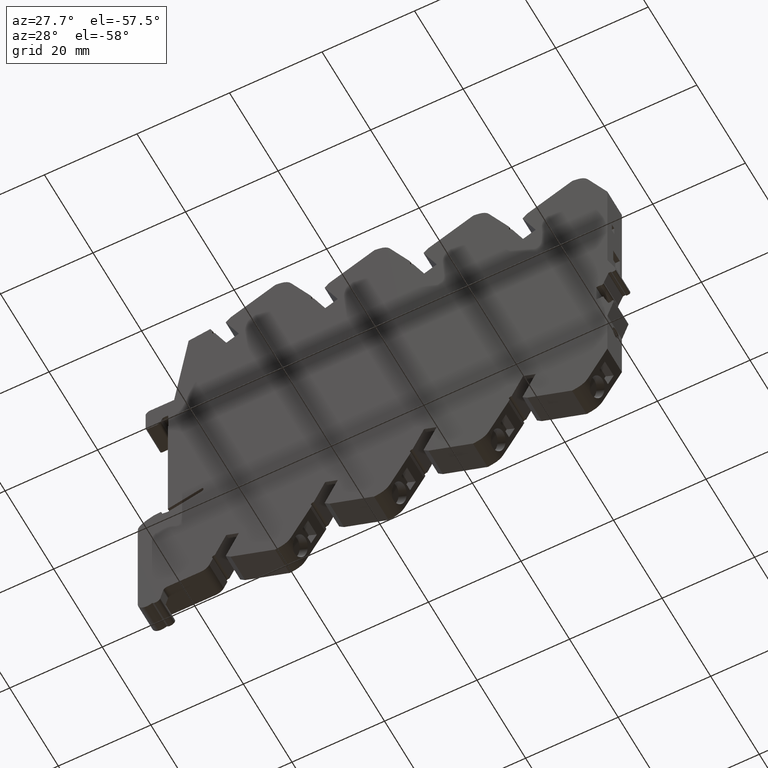
[diagram: clean part render]
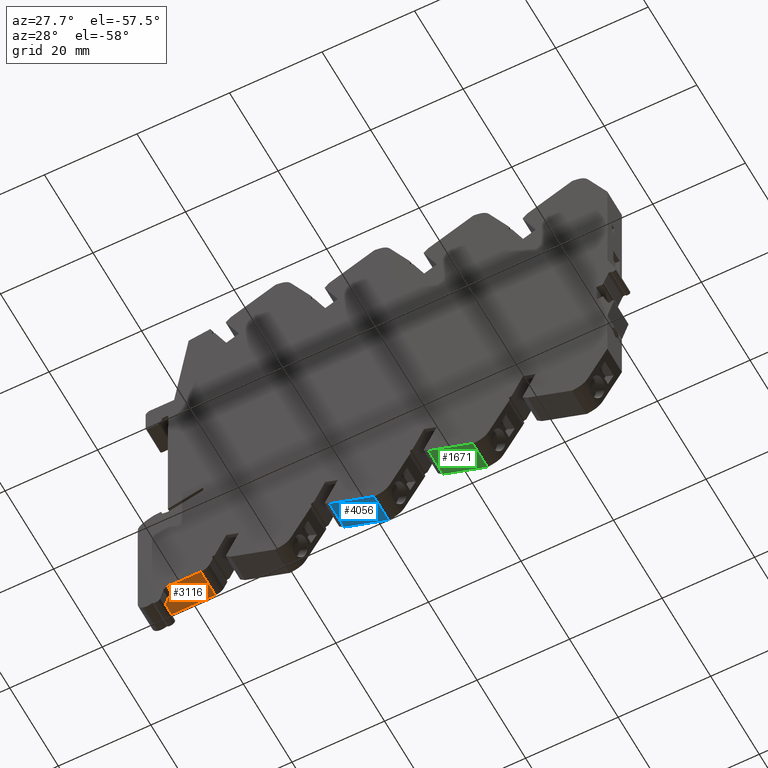
[diagram: same view with three faces highlighted in distinct colors, each labeled with its STEP entity id]
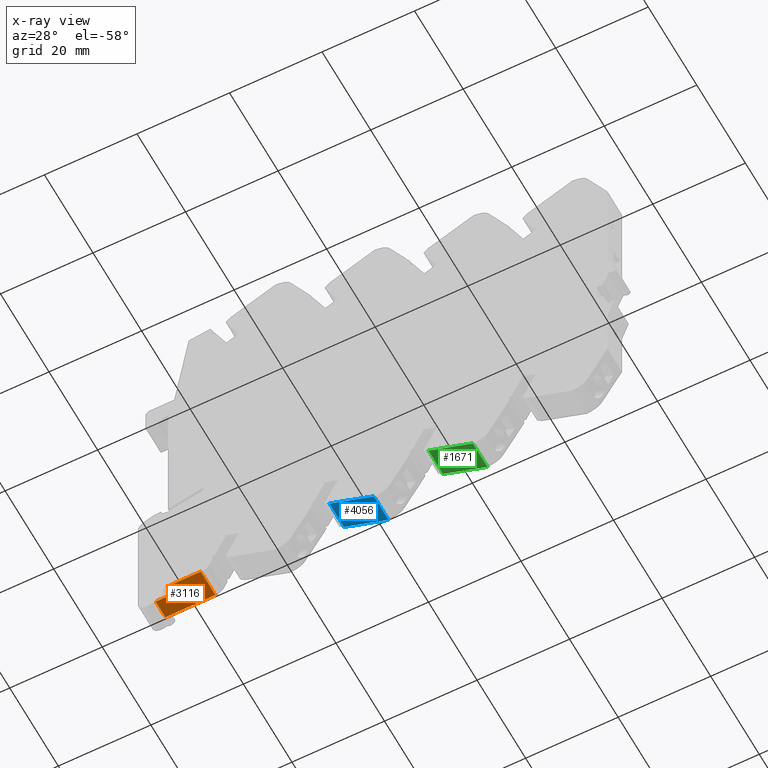
[diagram: x-ray of the same camera — body ghosted, the three highlighted faces saturated]
A machine part, auxiliary view with three faces highlighted in distinct colors.
The next image is the same camera in x-ray (body ghosted, the three faces saturated) — at least one of them is partly hidden behind the body in this view.
Their STEP definitions:

[orange] entity #3116 — the highlighted planar face has unit normal (0, 0, 1).
#158 = ORIENTED_EDGE ( 'NONE', *, *, #1839, .T. ) ;
#214 = CARTESIAN_POINT ( 'NONE',  ( -1.000000000000000000, -42.32500000000000284, -47.94222499999999343 ) ) ;
#322 = ORIENTED_EDGE ( 'NONE', *, *, #4272, .F. ) ;
#336 = CARTESIAN_POINT ( 'NONE',  ( -1.000000000000000000, -42.32500000000000284, -47.94222499999999343 ) ) ;
#961 = VERTEX_POINT ( 'NONE', #7839 ) ;
#1116 = LINE ( 'NONE', #336, #8563 ) ;
#1256 = LINE ( 'NONE', #4644, #8470 ) ;
#1398 = DIRECTION ( 'NONE',  ( 0.000000000000000000, 0.000000000000000000, -1.000000000000000000 ) ) ;
#1571 = FACE_OUTER_BOUND ( 'NONE', #3781, .T. ) ;
#1590 = EDGE_CURVE ( 'NONE', #7468, #2349, #8648, .T. ) ;
#1645 = VECTOR ( 'NONE', #5424, 1000.000000000000000 ) ;
#1839 = EDGE_CURVE ( 'NONE', #8621, #2349, #1256, .T. ) ;
#1868 = VECTOR ( 'NONE', #1398, 1000.000000000000000 ) ;
#2232 = DIRECTION ( 'NONE',  ( 0.000000000000000000, 0.000000000000000000, 1.000000000000000000 ) ) ;
#2349 = VERTEX_POINT ( 'NONE', #4158 ) ;
#2640 = CARTESIAN_POINT ( 'NONE',  ( 3.000000000000000000, -42.32500000000000284, -44.29713899999999427 ) ) ;
#2749 = ORIENTED_EDGE ( 'NONE', *, *, #6349, .F. ) ;
#2808 = CARTESIAN_POINT ( 'NONE',  ( 3.000000000000000000, -42.32500000000000284, -37.11722699999998554 ) ) ;
#2911 = VECTOR ( 'NONE', #6940, 1000.000000000000000 ) ;
#2977 = CARTESIAN_POINT ( 'NONE',  ( 3.000000000000000000, -42.32500000000000284, -47.94222499999999343 ) ) ;
#3116 = ADVANCED_FACE ( 'NONE', ( #1571 ), #6759, .F. ) ;
#3210 = VERTEX_POINT ( 'NONE', #2977 ) ;
#3255 = EDGE_CURVE ( 'NONE', #7694, #3210, #1116, .T. ) ;
#3396 = ORIENTED_EDGE ( 'NONE', *, *, #1590, .F. ) ;
#3772 = DIRECTION ( 'NONE',  ( 1.000000000000000000, 0.000000000000000000, 0.000000000000000000 ) ) ;
#3778 = EDGE_CURVE ( 'NONE', #961, #8621, #8653, .T. ) ;
#3781 = EDGE_LOOP ( 'NONE', ( #158, #3396, #322, #5074, #2749, #6946 ) ) ;
#4122 = CARTESIAN_POINT ( 'NONE',  ( -1.000000000000000000, -42.32500000000000284, -47.94222499999999343 ) ) ;
#4158 = CARTESIAN_POINT ( 'NONE',  ( -3.000000000000000000, -42.32500000000000284, -44.29713899999999427 ) ) ;
#4272 = EDGE_CURVE ( 'NONE', #7694, #7468, #6237, .T. ) ;
#4346 = CARTESIAN_POINT ( 'NONE',  ( -1.000000000000000000, -42.32500000000000284, -44.29713832417598240 ) ) ;
#4644 = CARTESIAN_POINT ( 'NONE',  ( -3.000000000000000000, -42.32500000000000284, -37.11722699999998554 ) ) ;
#4674 = CARTESIAN_POINT ( 'NONE',  ( -3.000000000000000000, -42.32500000000000284, -37.11722699999998554 ) ) ;
#5074 = ORIENTED_EDGE ( 'NONE', *, *, #3255, .T. ) ;
#5118 = VECTOR ( 'NONE', #6976, 1000.000000000000000 ) ;
#5176 = DIRECTION ( 'NONE',  ( 0.000000000000000000, 0.000000000000000000, -1.000000000000000000 ) ) ;
#5211 = AXIS2_PLACEMENT_3D ( 'NONE', #2808, #8245, #2232 ) ;
#5424 = DIRECTION ( 'NONE',  ( -1.000000000000000000, 0.000000000000000000, 0.000000000000000000 ) ) ;
#6237 = LINE ( 'NONE', #214, #2911 ) ;
#6349 = EDGE_CURVE ( 'NONE', #961, #3210, #6793, .T. ) ;
#6691 = CARTESIAN_POINT ( 'NONE',  ( 3.000000000000000000, -42.32500000000000284, -37.11722699999998554 ) ) ;
#6759 = PLANE ( 'NONE',  #5211 ) ;
#6793 = LINE ( 'NONE', #7415, #1868 ) ;
#6940 = DIRECTION ( 'NONE',  ( 0.000000000000000000, 0.000000000000000000, 1.000000000000000000 ) ) ;
#6946 = ORIENTED_EDGE ( 'NONE', *, *, #3778, .T. ) ;
#6976 = DIRECTION ( 'NONE',  ( -1.000000000000000000, 0.000000000000000000, 0.000000000000000000 ) ) ;
#7415 = CARTESIAN_POINT ( 'NONE',  ( 3.000000000000000000, -42.32500000000000284, -37.11722699999998554 ) ) ;
#7468 = VERTEX_POINT ( 'NONE', #4346 ) ;
#7694 = VERTEX_POINT ( 'NONE', #4122 ) ;
#7839 = CARTESIAN_POINT ( 'NONE',  ( 3.000000000000000000, -42.32500000000000284, -37.11722699999998554 ) ) ;
#8245 = DIRECTION ( 'NONE',  ( 0.000000000000000000, 1.000000000000000000, 0.000000000000000000 ) ) ;
#8470 = VECTOR ( 'NONE', #5176, 1000.000000000000000 ) ;
#8563 = VECTOR ( 'NONE', #3772, 1000.000000000000000 ) ;
#8621 = VERTEX_POINT ( 'NONE', #4674 ) ;
#8648 = LINE ( 'NONE', #2640, #5118 ) ;
#8653 = LINE ( 'NONE', #6691, #1645 ) ;

[blue] entity #4056 — the highlighted planar face has unit normal (0.4226, 0, 0.9063).
#346 = DIRECTION ( 'NONE',  ( 0.000000000000000000, 0.4226182966199911184, -0.9063077707721682863 ) ) ;
#915 = VERTEX_POINT ( 'NONE', #1695 ) ;
#1013 = CARTESIAN_POINT ( 'NONE',  ( 3.000000000000000000, -42.84747228031760358, 0.3024196011430085873 ) ) ;
#1078 = LINE ( 'NONE', #1567, #1706 ) ;
#1372 = DIRECTION ( 'NONE',  ( 0.000000000000000000, 0.9063077707721683973, 0.4226182966199911739 ) ) ;
#1567 = CARTESIAN_POINT ( 'NONE',  ( 3.000000000000000000, -38.36255899999999741, -9.315506999999993099 ) ) ;
#1695 = CARTESIAN_POINT ( 'NONE',  ( 3.000000000000000000, -42.84747228031760358, 0.3024196011430085873 ) ) ;
#1706 = VECTOR ( 'NONE', #2315, 1000.000000000000000 ) ;
#1723 = FACE_OUTER_BOUND ( 'NONE', #7748, .T. ) ;
#2315 = DIRECTION ( 'NONE',  ( -1.000000000000000000, 0.000000000000000000, 0.000000000000000000 ) ) ;
#2465 = ORIENTED_EDGE ( 'NONE', *, *, #4678, .F. ) ;
#2500 = VERTEX_POINT ( 'NONE', #7533 ) ;
#2723 = LINE ( 'NONE', #4179, #4597 ) ;
#2785 = CARTESIAN_POINT ( 'NONE',  ( -3.000000000000000000, -38.36255899999999741, -9.315506999999993099 ) ) ;
#2878 = EDGE_CURVE ( 'NONE', #2500, #3932, #5017, .T. ) ;
#3480 = VECTOR ( 'NONE', #4797, 1000.000000000000114 ) ;
#3658 = PLANE ( 'NONE',  #4883 ) ;
#3932 = VERTEX_POINT ( 'NONE', #2785 ) ;
#4056 = ADVANCED_FACE ( 'NONE', ( #1723 ), #3658, .F. ) ;
#4163 = EDGE_CURVE ( 'NONE', #915, #6700, #7430, .T. ) ;
#4179 = CARTESIAN_POINT ( 'NONE',  ( 3.000000000000000000, -42.84747228031760358, 0.3024196011430085873 ) ) ;
#4186 = CARTESIAN_POINT ( 'NONE',  ( 3.000000000000000000, -42.84747228031760358, 0.3024196011430085873 ) ) ;
#4384 = VECTOR ( 'NONE', #346, 1000.000000000000114 ) ;
#4597 = VECTOR ( 'NONE', #4791, 1000.000000000000000 ) ;
#4678 = EDGE_CURVE ( 'NONE', #6700, #3932, #1078, .T. ) ;
#4681 = CARTESIAN_POINT ( 'NONE',  ( 3.000000000000000000, -38.36255899999999741, -9.315506999999993099 ) ) ;
#4791 = DIRECTION ( 'NONE',  ( -1.000000000000000000, 0.000000000000000000, 0.000000000000000000 ) ) ;
#4797 = DIRECTION ( 'NONE',  ( 0.000000000000000000, 0.4226182966199911184, -0.9063077707721682863 ) ) ;
#4883 = AXIS2_PLACEMENT_3D ( 'NONE', #1013, #1372, #6550 ) ;
#5017 = LINE ( 'NONE', #7687, #4384 ) ;
#5492 = ORIENTED_EDGE ( 'NONE', *, *, #2878, .T. ) ;
#5711 = EDGE_CURVE ( 'NONE', #915, #2500, #2723, .T. ) ;
#6550 = DIRECTION ( 'NONE',  ( -1.000000000000000000, 0.000000000000000000, 0.000000000000000000 ) ) ;
#6700 = VERTEX_POINT ( 'NONE', #4681 ) ;
#6862 = ORIENTED_EDGE ( 'NONE', *, *, #4163, .F. ) ;
#7430 = LINE ( 'NONE', #4186, #3480 ) ;
#7533 = CARTESIAN_POINT ( 'NONE',  ( -3.000000000000000000, -42.84747228031760358, 0.3024196011430085873 ) ) ;
#7687 = CARTESIAN_POINT ( 'NONE',  ( -3.000000000000000000, -42.84747228031760358, 0.3024196011430085873 ) ) ;
#7748 = EDGE_LOOP ( 'NONE', ( #5492, #2465, #6862, #8016 ) ) ;
#8016 = ORIENTED_EDGE ( 'NONE', *, *, #5711, .T. ) ;

[green] entity #1671 — the highlighted planar face has unit normal (0.4226, 0, 0.9063).
#17 = VECTOR ( 'NONE', #5312, 1000.000000000000114 ) ;
#304 = DIRECTION ( 'NONE',  ( -1.000000000000000000, 0.000000000000000000, 0.000000000000000000 ) ) ;
#339 = DIRECTION ( 'NONE',  ( -1.000000000000000000, 0.000000000000000000, 0.000000000000000000 ) ) ;
#439 = CARTESIAN_POINT ( 'NONE',  ( 3.000000000000000000, -35.09255900000000139, 12.06949300000000669 ) ) ;
#458 = VERTEX_POINT ( 'NONE', #6935 ) ;
#600 = CARTESIAN_POINT ( 'NONE',  ( 3.000000000000000000, -35.09255900000000139, 12.06949300000000669 ) ) ;
#996 = CARTESIAN_POINT ( 'NONE',  ( 3.000000000000000000, -39.57747228031760045, 21.68741960114301648 ) ) ;
#1294 = VECTOR ( 'NONE', #304, 1000.000000000000000 ) ;
#1649 = CARTESIAN_POINT ( 'NONE',  ( 3.000000000000000000, -39.57747228031760045, 21.68741960114301648 ) ) ;
#1671 = ADVANCED_FACE ( 'NONE', ( #6408 ), #4442, .F. ) ;
#2204 = ORIENTED_EDGE ( 'NONE', *, *, #7750, .F. ) ;
#2631 = CARTESIAN_POINT ( 'NONE',  ( -3.000000000000000000, -39.57747228031760045, 21.68741960114301648 ) ) ;
#2960 = LINE ( 'NONE', #1649, #6475 ) ;
#3067 = EDGE_CURVE ( 'NONE', #8111, #458, #8635, .T. ) ;
#3292 = ORIENTED_EDGE ( 'NONE', *, *, #7959, .F. ) ;
#3906 = VERTEX_POINT ( 'NONE', #7603 ) ;
#4442 = PLANE ( 'NONE',  #5248 ) ;
#5110 = VERTEX_POINT ( 'NONE', #439 ) ;
#5248 = AXIS2_PLACEMENT_3D ( 'NONE', #996, #6365, #339 ) ;
#5312 = DIRECTION ( 'NONE',  ( 0.000000000000000000, 0.4226182966199911184, -0.9063077707721682863 ) ) ;
#5485 = CARTESIAN_POINT ( 'NONE',  ( -3.000000000000000000, -39.57747228031760045, 21.68741960114301648 ) ) ;
#6171 = EDGE_LOOP ( 'NONE', ( #6411, #3292, #2204, #7582 ) ) ;
#6198 = CARTESIAN_POINT ( 'NONE',  ( 3.000000000000000000, -39.57747228031760045, 21.68741960114301648 ) ) ;
#6343 = DIRECTION ( 'NONE',  ( 0.000000000000000000, 0.4226182966199911184, -0.9063077707721682863 ) ) ;
#6365 = DIRECTION ( 'NONE',  ( 0.000000000000000000, 0.9063077707721685083, 0.4226182966199907853 ) ) ;
#6408 = FACE_OUTER_BOUND ( 'NONE', #6171, .T. ) ;
#6411 = ORIENTED_EDGE ( 'NONE', *, *, #3067, .T. ) ;
#6475 = VECTOR ( 'NONE', #6343, 1000.000000000000114 ) ;
#6935 = CARTESIAN_POINT ( 'NONE',  ( -3.000000000000000000, -35.09255900000000139, 12.06949300000000669 ) ) ;
#7027 = LINE ( 'NONE', #6198, #1294 ) ;
#7154 = EDGE_CURVE ( 'NONE', #3906, #8111, #7027, .T. ) ;
#7582 = ORIENTED_EDGE ( 'NONE', *, *, #7154, .T. ) ;
#7603 = CARTESIAN_POINT ( 'NONE',  ( 3.000000000000000000, -39.57747228031760045, 21.68741960114301648 ) ) ;
#7750 = EDGE_CURVE ( 'NONE', #3906, #5110, #2960, .T. ) ;
#7878 = VECTOR ( 'NONE', #8121, 1000.000000000000000 ) ;
#7959 = EDGE_CURVE ( 'NONE', #5110, #458, #8676, .T. ) ;
#8111 = VERTEX_POINT ( 'NONE', #5485 ) ;
#8121 = DIRECTION ( 'NONE',  ( -1.000000000000000000, 0.000000000000000000, 0.000000000000000000 ) ) ;
#8635 = LINE ( 'NONE', #2631, #17 ) ;
#8676 = LINE ( 'NONE', #600, #7878 ) ;